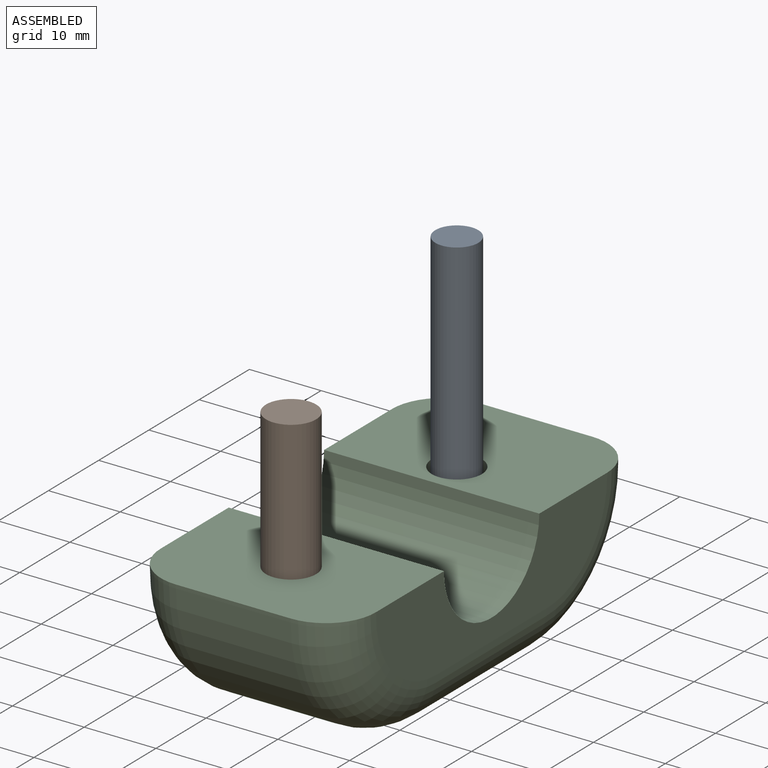
[diagram: assembled view]
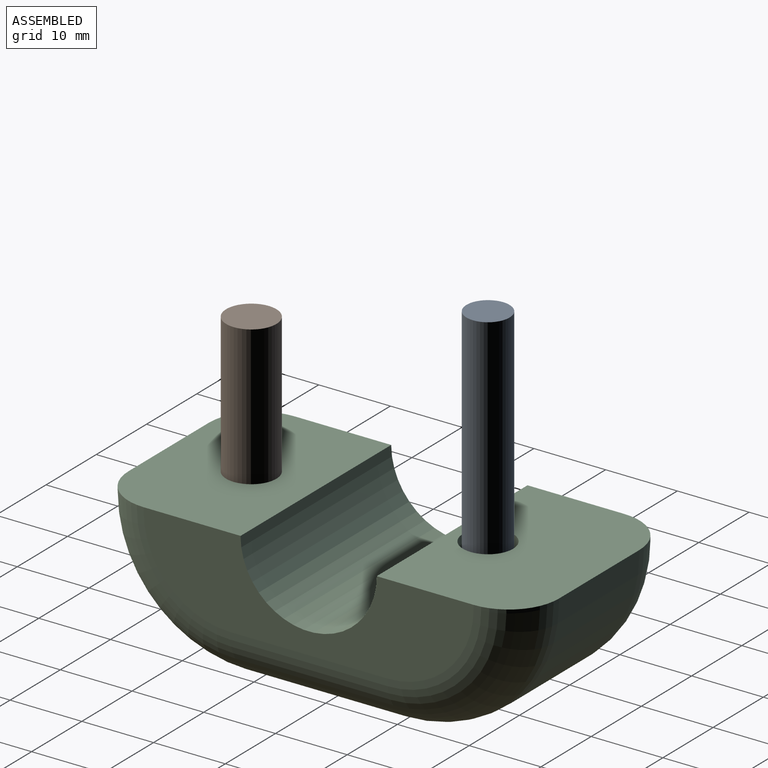
[diagram: assembled view, second angle]
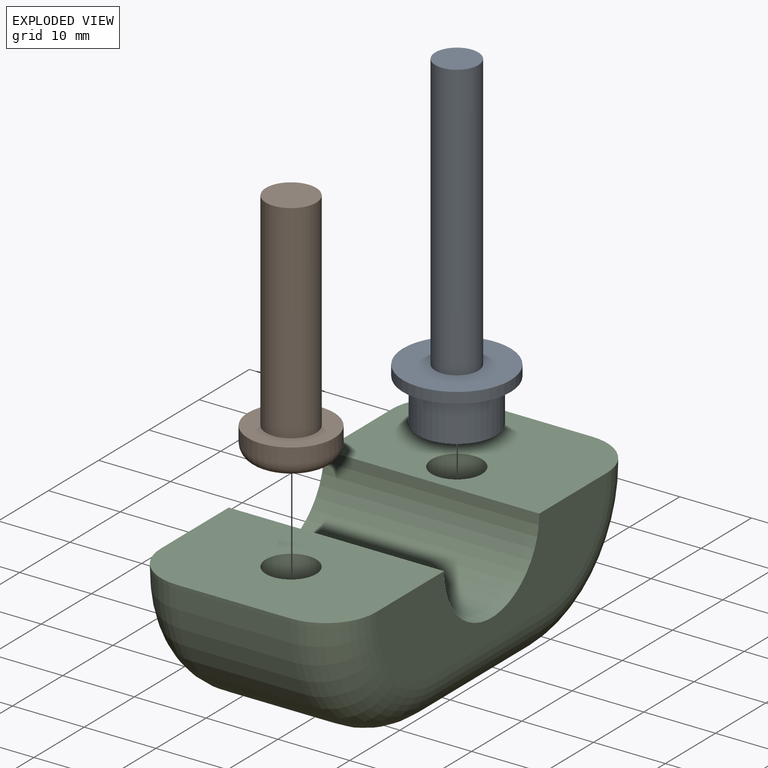
[diagram: exploded view]
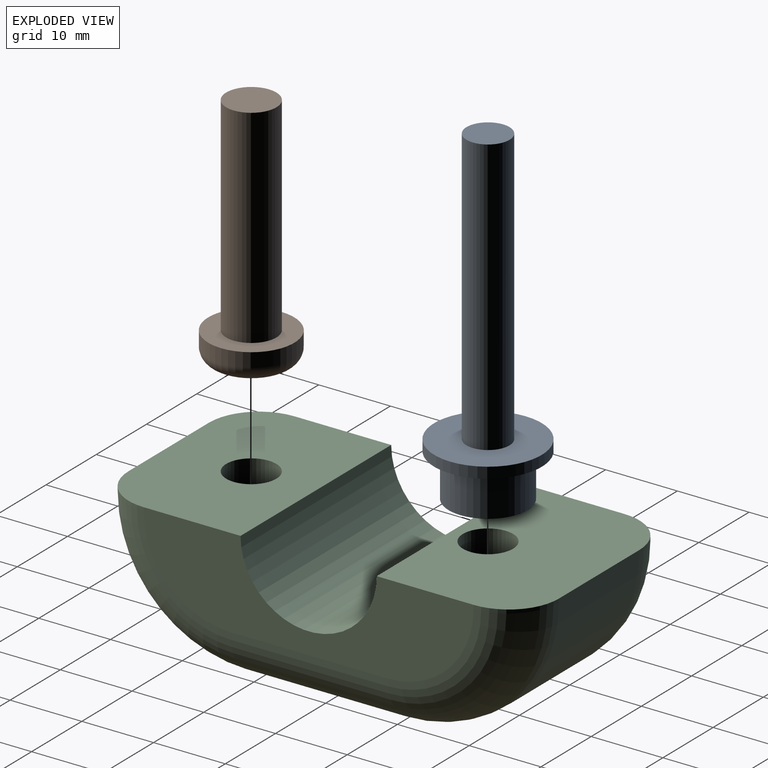
[diagram: exploded view, second angle]
ASSEMBLY  parts=3 mates=2
PART A: 14 faces, bbox 15x15x46 mm
  f0: cylinder r=5.5mm len=11mm, axis (0,0,-1), area 207.3mm2, adj f1,f11
  f1: plane 11x11mm, normal (0,0,-1), area 73.4mm2, adj f0,f2,f3,f4,f5,f6,f7
  f2: plane 4x2.77mm, normal (-0.28,0.96,0), area 11.5mm2, adj f1,f3,f7,f8
  f3: plane 4x2.08mm, normal (0.69,0.72,0), area 11.5mm2, adj f1,f2,f4,f8
  f4: plane 4x2.8mm, normal (0.97,-0.24,0), area 11.5mm2, adj f1,f3,f5,f8
  f5: plane 4x2.77mm, normal (0.28,-0.96,0), area 11.5mm2, adj f1,f4,f6,f8
  f6: plane 4x2.08mm, normal (-0.69,-0.72,0), area 11.5mm2, adj f1,f5,f7,f8
  f7: plane 4x2.8mm, normal (-0.97,0.24,0), area 11.5mm2, adj f1,f2,f6,f8
  f8: plane 5.6x5.55mm, normal (0,0,-1), area 21.7mm2, adj f2,f3,f4,f5,f6,f7
  f9: cylinder r=7.5mm len=15mm, axis (0,0,-1), area 70.7mm2, adj f10,f11
  f10: plane 15x15mm, normal (0,0,1), area 148.4mm2, adj f9,f13
  f11: plane 15x15mm, normal (0,0,-1), area 81.7mm2, adj f0,f9
  f12: plane 6x6mm, normal (0,0,1), area 28.3mm2, adj f13
  f13: cylinder r=3mm len=38.5mm, axis (0,0,-1), area 725.7mm2, adj f10,f12
PART B: 6 faces, bbox 13x13x33 mm
  f0: cylinder r=3.5mm len=29mm, axis (0,0,-1), area 637.7mm2, adj f1,f3
  f1: plane 7x7mm, normal (0,0,1), area 38.5mm2, adj f0
  f2: cylinder r=6mm len=12mm, axis (0,0,-1), area 75.4mm2, adj f3,f5
  f3: plane 12x12mm, normal (0,0,1), area 74.6mm2, adj f0,f2
  f4: plane 8x8mm, normal (0,0,-1), area 50.3mm2, adj f5
  f5: torus R=4mm, axis (0,0,1), area 104.1mm2, adj f2,f4
PART C: 27 faces, bbox 30x63.1x21.1 mm
  f0: cylinder r=3.5mm len=9.5mm, axis (0,0,-1), area 208.9mm2, adj f1,f2
  f1: plane 30x20.5mm, normal (0,0,1), area 555.5mm2, adj f0,f3,f4,f5,f6,f7,f8
  f2: plane 15x15mm, normal (0,0,-1), area 138.2mm2, adj f0,f9
  f3: plane 16x0.5mm, normal (0,1,0), area 8mm2, adj f1,f4,f8,f10
  f4: cylinder r=7mm len=7mm, axis (0,0,1), area 5.5mm2, adj f1,f3,f5,f11
  f5: plane 46x12.5mm, normal (-1,0,0), area 371.4mm2, adj f1,f4,f6,f11,f12,f13,f14,f15
  f6: cylinder r=9.5mm len=30mm, axis (-1,0,0), area 895.4mm2, adj f1,f5,f7,f14
  f7: plane 46x12.5mm, normal (1,0,0), area 371.4mm2, adj f1,f6,f8,f14,f16,f17,f18,f19
  f8: cylinder r=7mm len=7mm, axis (0,0,-1), area 5.5mm2, adj f1,f3,f7,f19
  f9: cylinder r=7.5mm len=15mm, axis (0,0,-1), area 421.3mm2, adj f2,f10,f20
  f10: cylinder r=19mm len=19mm, axis (-1,0,0), area 331.5mm2, adj f3,f9,f11,f19,f20
  f11: torus R=12mm, axis (1,0,0), area 284.2mm2, adj f4,f5,f10,f15
  f12: torus R=12mm, axis (1,0,0), area 284.2mm2, adj f5,f13,f15,f21
  f13: cylinder r=7mm len=7mm, axis (0,0,-1), area 5.5mm2, adj f5,f12,f14,f22
  f14: plane 30x20.5mm, normal (0,0,1), area 555.5mm2, adj f5,f6,f7,f13,f16,f22,f23
  f15: cylinder r=7mm len=22mm, axis (0,-1,0), area 241.9mm2, adj f5,f11,f12,f20
  f16: cylinder r=7mm len=7mm, axis (0,0,1), area 5.5mm2, adj f7,f14,f17,f22
  f17: torus R=12mm, axis (1,0,0), area 284.2mm2, adj f7,f16,f18,f21
  f18: cylinder r=7mm len=22mm, axis (0,1,0), area 241.9mm2, adj f7,f17,f19,f20
  f19: torus R=12mm, axis (1,0,0), area 284.2mm2, adj f7,f8,f10,f18
  f20: plane 22x16mm, normal (0,0,-1), area 314.2mm2, adj f9,f10,f15,f18,f21
  f21: cylinder r=19mm len=19mm, axis (1,0,0), area 477.5mm2, adj f12,f17,f20,f22
  f22: plane 16x0.5mm, normal (0,-1,0), area 8mm2, adj f13,f14,f16,f21
  f23: cylinder r=3.5mm len=9.5mm, axis (0,0,-1), area 208.9mm2, adj f14,f24
  f24: plane 15x15mm, normal (0,0,-1), area 138.2mm2, adj f23,f25
  f25: cylinder r=7.5mm len=15mm, axis (0,0,-1), area 350mm2, adj f24,f26
  f26: cylinder r=19mm len=15mm, axis (1,0,0), area 200.5mm2, adj f25
PLACE A t=(44.81,32.13,-7.5)mm
PLACE B t=(44.81,-33.87,-4)mm
PLACE C t=(0,1.13,0)mm
MATE fastened C.f23 <-> B.f0  axis (0,0,-1) through (0,-17.37,10)mm
MATE fastened C.f0 <-> A.f0  axis (0,0,-1) through (0,15.63,10)mm
